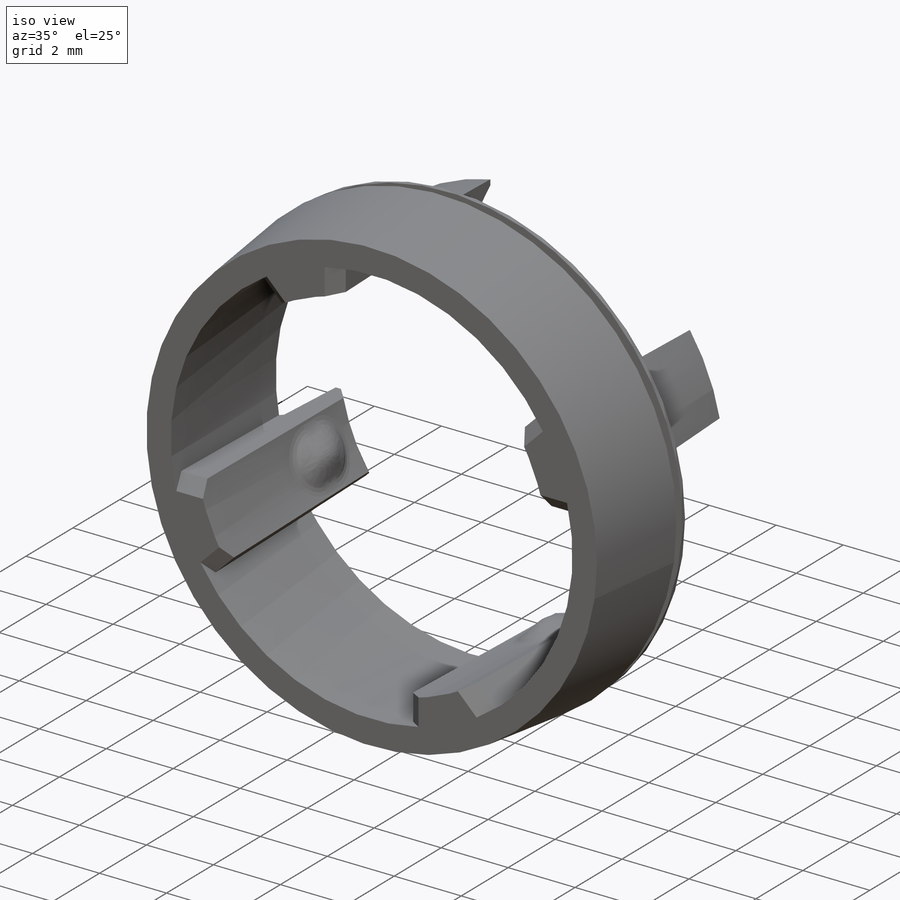
[diagram: iso view]
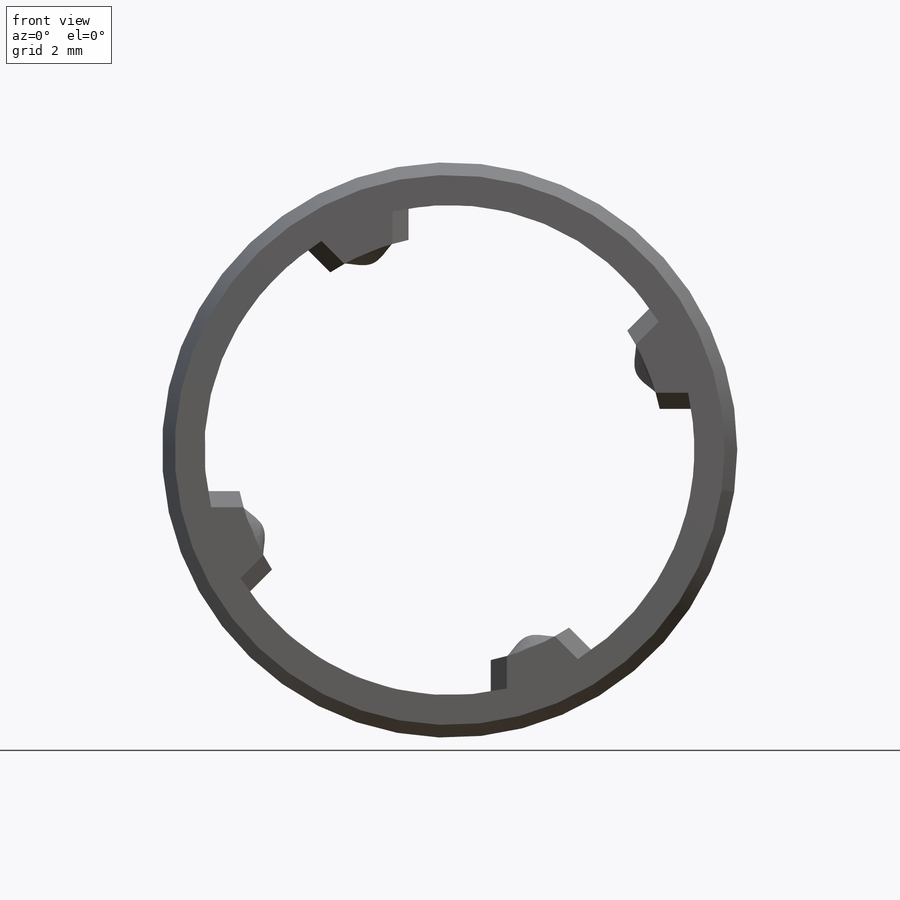
[diagram: front view]
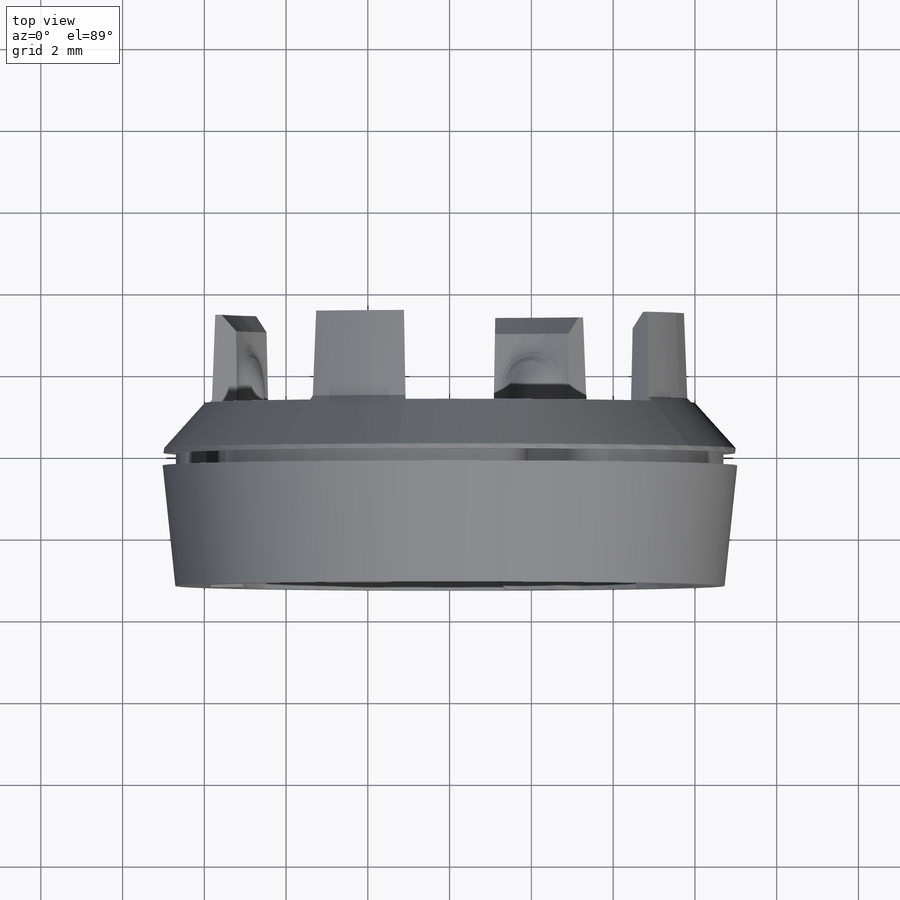
[diagram: top view]
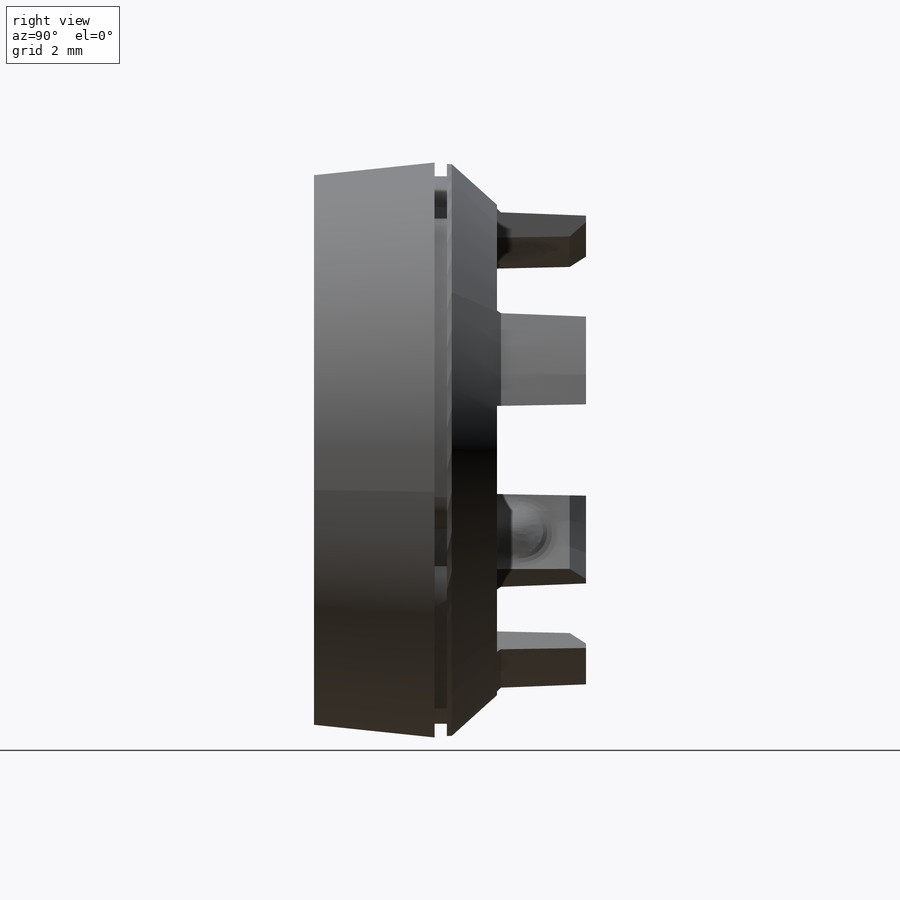
[diagram: right view]
SOLIDWORKS PART (.sldprt)
format: sldprt  version: not decoded by parser v0  size: 886,784 bytes
history: native  units: mm
features: sketch x10, chamfer x6, plane x5, extrude x5, cut_extrude x5, pattern_circular x3, fillet x2, material x1, dome x1 (+11 scaffold rows collapsed)
feature tree (49):
  scaffold x11  (default folders/planes/origin — collapsed)
  material  "Material <not specified>"
  plane  "Plane1"
  plane  "Plane2"
  plane  "Plane3"
  sketch  "Sketch1"  dims[D1=13.4mm]
  extrude  "13 boss"  Depth=3.25mm
  sketch  "Sketch3"  dims[c1.D1=11.2mm c1.D2=12.0mm c1.D4=0.09mm c1.D5=0.09mm c2.D4=12.0mm c2.D2=12.0mm c2.D3=11.2mm c2.D1=10.46mm c3.D3=~9.93115mm c4.D3=7.0deg c4.D4=7.35mm c5.D4=7.0deg c5.D2=2.0mm c5.D3=~4.60002mm c6.D3=90.0deg c6.D1=1.5mm c6.D4=~1.387537mm c7.D4=90.0deg c7.D1=5.6mm c8.D1=15.0deg c8.D5=~0.827625mm c8.D6=6.0mm c9.D6=~5.874069deg c9.D1=5.6mm]
  chamfer  "Chamfer5"  Distance=1.75mm Angle=0.7deg
  sketch  "Sketch2"  dims[D1=14.0mm]
  extrude  "14 boss"  Depth=2.42mm
  cut_extrude  " center hole"  [1 undecoded]
  chamfer  "Chamfer1"  Distance=0.1mm Angle=75deg
  sketch  "Sketch14"  dims[c1.D3=12.0mm c1.D1=2.05mm c1.D2=2.05mm c2.D1=5.0mm c2.D2=2.0mm c3.D1=0.03mm c3.D2=0.03mm c4.D1=0.01mm]
  cut_extrude  "Cut-groves"  [1 undecoded]
  pattern_circular  "CirPattern1"  Count=8 Angle=360deg
  chamfer  "Chamfer6"  Distance=0.2mm
  sketch  "Sketch15"
  cut_extrude  "Cut-Extrude1"  Depth=1mm
  sketch  "Sketch16"
  extrude  "Boss-Extrude1"  Depth=1.985mm
  chamfer  "Chamfer8"  Distance=0.4mm Angle=40deg
  chamfer  "Chamfer9"  Distance=0.4mm Angle=40deg
  plane  "Plane4"
  sketch  "Sketch17"  dims[D1=0.6mm D2=0.5mm D3=1.5mm]
  extrude  "Boss-Extrude2"  Depth=0.05mm
  dome  "Dome1"
  fillet  "Fillet2"  Radius=0.5mm
  pattern_circular  "CirPattern3"  Count=4 Angle=90deg
  chamfer  "Chamfer10"  Distance=1.3mm Angle=41deg
  sketch  "Sketch18"  dims[D1=4.0]
  cut_extrude  "Cut-Extrude2"  Depth=10mm
  sketch  "Sketch20"  dims[D1=~13.453278mm]
  plane  "View"
  extrude  "Boss-Extrude3"  Depth=2.95mm
  sketch  "Sketch23"  dims[D1=0.5mm]
  cut_extrude  "Cut-Extrude3"  Depth=0.3mm
  fillet  "Fillet3"  Radius=1mm
  pattern_circular  "CirPattern4"  Count=4 Angle=90deg
decode coverage: 27 of 32 modeling features carry decoded parameters
note: ~ marks probable driven/reference dimensions
note: 2 parameter values undecoded
note: suppression state not decoded; provenance and decode notes live in map.json
